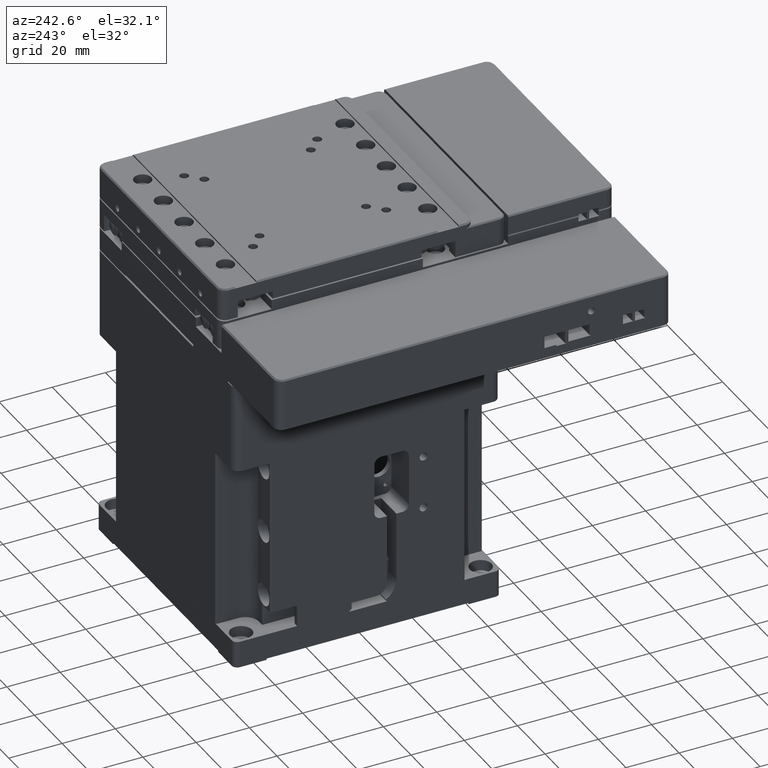
[diagram: clean part render]
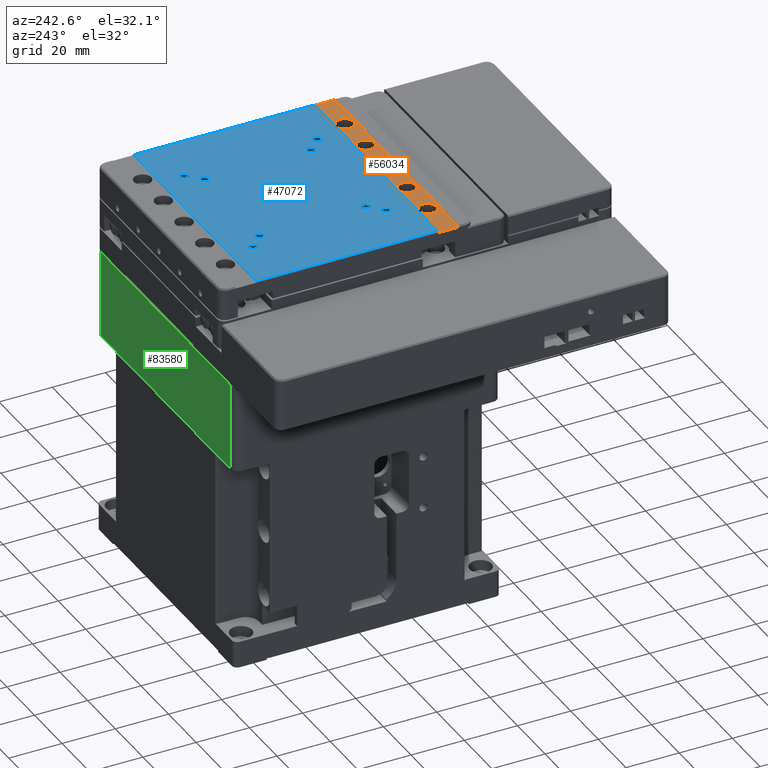
[diagram: same view with three faces highlighted in distinct colors, each labeled with its STEP entity id]
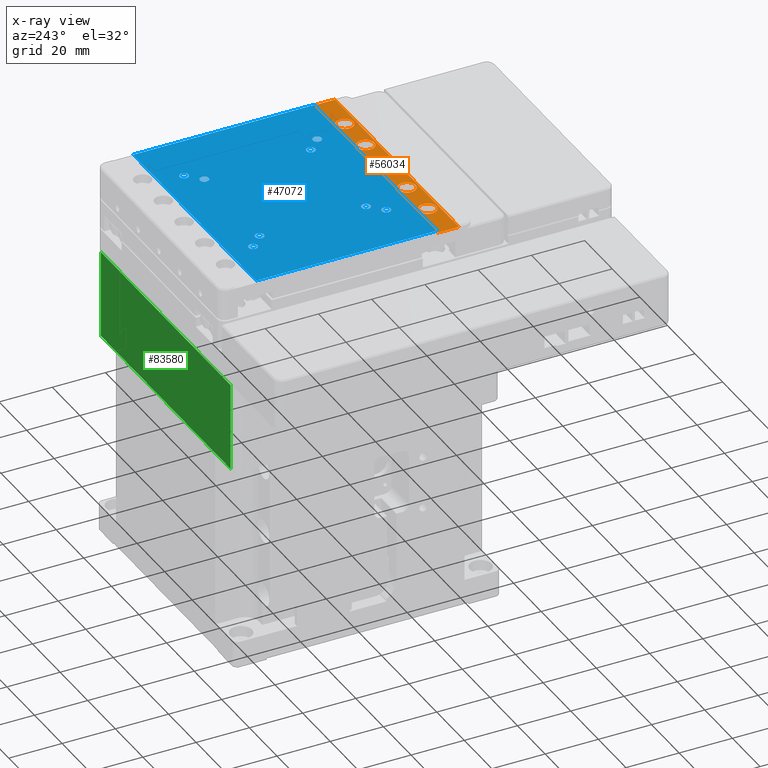
[diagram: x-ray of the same camera — body ghosted, the three highlighted faces saturated]
A machine part, auxiliary view with three faces highlighted in distinct colors.
The next image is the same camera in x-ray (body ghosted, the three faces saturated) — at least one of them is partly hidden behind the body in this view.
Their STEP definitions:

[orange] entity #56034 — the highlighted planar face has unit normal (0, 0, -1).
#1858 = CARTESIAN_POINT ( 'NONE',  ( 34.99999999999986500, -35.50000000000102318, 132.5000000000000000 ) ) ;
#2643 = ORIENTED_EDGE ( 'NONE', *, *, #15780, .F. ) ;
#6054 = DIRECTION ( 'NONE',  ( -1.665334536937734811E-16, -1.000000000000000000, -0.000000000000000000 ) ) ;
#6766 = CARTESIAN_POINT ( 'NONE',  ( -25.00000000000013145, -38.75000000000101608, 132.5000000000000000 ) ) ;
#7439 = EDGE_LOOP ( 'NONE', ( #2643 ) ) ;
#8883 = DIRECTION ( 'NONE',  ( 0.000000000000000000, 0.000000000000000000, 1.000000000000000000 ) ) ;
#9236 = DIRECTION ( 'NONE',  ( -1.000000000000000000, 1.665334536937734811E-16, 0.000000000000000000 ) ) ;
#10982 = EDGE_CURVE ( 'NONE', #37245, #37245, #47901, .T. ) ;
#11151 = EDGE_LOOP ( 'NONE', ( #74323 ) ) ;
#11542 = DIRECTION ( 'NONE',  ( 0.000000000000000000, -1.000000000000000000, 0.000000000000000000 ) ) ;
#12191 = ORIENTED_EDGE ( 'NONE', *, *, #41349, .F. ) ;
#12599 = VECTOR ( 'NONE', #19392, 1000.000000000000000 ) ;
#12980 = AXIS2_PLACEMENT_3D ( 'NONE', #61013, #52544, #16803 ) ;
#14529 = AXIS2_PLACEMENT_3D ( 'NONE', #57972, #79612, #22226 ) ;
#15780 = EDGE_CURVE ( 'NONE', #91766, #91766, #52053, .T. ) ;
#16452 = CARTESIAN_POINT ( 'NONE',  ( 34.99999999999986500, -38.75000000000102318, 132.5000000000000000 ) ) ;
#16750 = CARTESIAN_POINT ( 'NONE',  ( -55.00000000000013500, -31.50000000000100542, 132.5000000000000000 ) ) ;
#16803 = DIRECTION ( 'NONE',  ( -2.668805347656624213E-16, -1.000000000000000000, 0.000000000000000000 ) ) ;
#17552 = CIRCLE ( 'NONE', #64065, 3.250000000000002665 ) ;
#18461 = DIRECTION ( 'NONE',  ( 0.000000000000000000, -1.000000000000000000, 0.000000000000000000 ) ) ;
#19392 = DIRECTION ( 'NONE',  ( -1.000000000000000000, 1.665334536937734811E-16, -0.000000000000000000 ) ) ;
#19734 = CARTESIAN_POINT ( 'NONE',  ( -10.00000000000012790, -35.50000000000101608, 132.5000000000000000 ) ) ;
#22226 = DIRECTION ( 'NONE',  ( 1.665334536937734811E-16, 1.000000000000000000, 0.000000000000000000 ) ) ;
#23604 = FACE_BOUND ( 'NONE', #51692, .T. ) ;
#23847 = AXIS2_PLACEMENT_3D ( 'NONE', #82906, #52004, #18461 ) ;
#27277 = EDGE_CURVE ( 'NONE', #69181, #88121, #81194, .T. ) ;
#28460 = CIRCLE ( 'NONE', #91598, 3.250000000000002665 ) ;
#28651 = DIRECTION ( 'NONE',  ( 0.000000000000000000, 0.000000000000000000, 1.000000000000000000 ) ) ;
#30220 = FACE_BOUND ( 'NONE', #7439, .T. ) ;
#32977 = ORIENTED_EDGE ( 'NONE', *, *, #90815, .F. ) ;
#33040 = AXIS2_PLACEMENT_3D ( 'NONE', #1858, #8883, #80854 ) ;
#33061 = CARTESIAN_POINT ( 'NONE',  ( -55.00000000000013500, -39.50000000000103739, 132.5000000000000000 ) ) ;
#34102 = VERTEX_POINT ( 'NONE', #73872 ) ;
#36387 = VERTEX_POINT ( 'NONE', #6766 ) ;
#37245 = VERTEX_POINT ( 'NONE', #88049 ) ;
#37252 = FACE_BOUND ( 'NONE', #58352, .T. ) ;
#38652 = FACE_OUTER_BOUND ( 'NONE', #86114, .T. ) ;
#39205 = CARTESIAN_POINT ( 'NONE',  ( -40.00000000000013500, -31.50000000000100542, 132.5000000000000000 ) ) ;
#41349 = EDGE_CURVE ( 'NONE', #53129, #53129, #60022, .T. ) ;
#41791 = CARTESIAN_POINT ( 'NONE',  ( 49.99999999999986500, -31.50000000000101963, 132.5000000000000000 ) ) ;
#46673 = ORIENTED_EDGE ( 'NONE', *, *, #76871, .F. ) ;
#47901 = CIRCLE ( 'NONE', #23847, 3.250000000000002665 ) ;
#49408 = CARTESIAN_POINT ( 'NONE',  ( 4.999999999999870326, -38.75000000000102318, 132.5000000000000000 ) ) ;
#51692 = EDGE_LOOP ( 'NONE', ( #12191 ) ) ;
#52004 = DIRECTION ( 'NONE',  ( 0.000000000000000000, 0.000000000000000000, 1.000000000000000000 ) ) ;
#52053 = CIRCLE ( 'NONE', #12980, 3.250000000000002665 ) ;
#52544 = DIRECTION ( 'NONE',  ( 0.000000000000000000, 0.000000000000000000, 1.000000000000000000 ) ) ;
#52783 = VECTOR ( 'NONE', #9236, 1000.000000000000000 ) ;
#53129 = VERTEX_POINT ( 'NONE', #16452 ) ;
#53882 = VECTOR ( 'NONE', #6054, 1000.000000000000000 ) ;
#54835 = CARTESIAN_POINT ( 'NONE',  ( -25.00000000000013145, -35.50000000000100897, 132.5000000000000000 ) ) ;
#56034 = ADVANCED_FACE ( 'NONE', ( #38652, #23604, #37252, #30220, #87123, #67326 ), #58428, .F. ) ;
#57764 = EDGE_CURVE ( 'NONE', #69181, #34102, #85532, .T. ) ;
#57859 = CARTESIAN_POINT ( 'NONE',  ( -40.00000000000013500, -31.50000000000101252, 132.5000000000000000 ) ) ;
#57972 = CARTESIAN_POINT ( 'NONE',  ( -55.00000000000013500, -31.50000000000100542, 132.5000000000000000 ) ) ;
#58352 = EDGE_LOOP ( 'NONE', ( #92487 ) ) ;
#58428 = PLANE ( 'NONE',  #14529 ) ;
#59907 = DIRECTION ( 'NONE',  ( 1.665334536937734811E-16, 1.000000000000000000, 0.000000000000000000 ) ) ;
#60022 = CIRCLE ( 'NONE', #33040, 3.250000000000002665 ) ;
#61013 = CARTESIAN_POINT ( 'NONE',  ( 4.999999999999871214, -35.50000000000101608, 132.5000000000000000 ) ) ;
#63459 = DIRECTION ( 'NONE',  ( 0.000000000000000000, -1.000000000000000000, 0.000000000000000000 ) ) ;
#64065 = AXIS2_PLACEMENT_3D ( 'NONE', #54835, #83053, #11542 ) ;
#67326 = FACE_BOUND ( 'NONE', #73690, .T. ) ;
#68578 = EDGE_CURVE ( 'NONE', #78024, #78024, #28460, .T. ) ;
#69181 = VERTEX_POINT ( 'NONE', #73659 ) ;
#73659 = CARTESIAN_POINT ( 'NONE',  ( 49.99999999999986500, -31.50000000000103384, 132.5000000000000000 ) ) ;
#73690 = EDGE_LOOP ( 'NONE', ( #32977 ) ) ;
#73872 = CARTESIAN_POINT ( 'NONE',  ( 49.99999999920125049, -39.50000000000105160, 132.5000000008983250 ) ) ;
#74323 = ORIENTED_EDGE ( 'NONE', *, *, #68578, .F. ) ;
#74528 = VERTEX_POINT ( 'NONE', #85765 ) ;
#76871 = EDGE_CURVE ( 'NONE', #34102, #74528, #90931, .T. ) ;
#78024 = VERTEX_POINT ( 'NONE', #85097 ) ;
#79587 = ORIENTED_EDGE ( 'NONE', *, *, #57764, .F. ) ;
#79612 = DIRECTION ( 'NONE',  ( 0.000000000000000000, 0.000000000000000000, -1.000000000000000000 ) ) ;
#80472 = EDGE_CURVE ( 'NONE', #74528, #88121, #89081, .T. ) ;
#80854 = DIRECTION ( 'NONE',  ( 0.000000000000000000, -1.000000000000000000, 0.000000000000000000 ) ) ;
#81194 = LINE ( 'NONE', #16750, #52783 ) ;
#82906 = CARTESIAN_POINT ( 'NONE',  ( 19.99999999999987210, -35.50000000000101608, 132.5000000000000000 ) ) ;
#83053 = DIRECTION ( 'NONE',  ( 0.000000000000000000, 0.000000000000000000, 1.000000000000000000 ) ) ;
#84983 = ORIENTED_EDGE ( 'NONE', *, *, #80472, .F. ) ;
#85097 = CARTESIAN_POINT ( 'NONE',  ( -10.00000000000012790, -38.75000000000102318, 132.5000000000000000 ) ) ;
#85532 = LINE ( 'NONE', #41791, #53882 ) ;
#85765 = CARTESIAN_POINT ( 'NONE',  ( -40.00000000000013500, -39.50000000000104450, 132.5000000000000000 ) ) ;
#86114 = EDGE_LOOP ( 'NONE', ( #79587, #87418, #84983, #46673 ) ) ;
#87123 = FACE_BOUND ( 'NONE', #11151, .T. ) ;
#87418 = ORIENTED_EDGE ( 'NONE', *, *, #27277, .T. ) ;
#88049 = CARTESIAN_POINT ( 'NONE',  ( 19.99999999999987210, -38.75000000000102318, 132.5000000000000000 ) ) ;
#88121 = VERTEX_POINT ( 'NONE', #57859 ) ;
#89081 = LINE ( 'NONE', #39205, #93006 ) ;
#90815 = EDGE_CURVE ( 'NONE', #36387, #36387, #17552, .T. ) ;
#90931 = LINE ( 'NONE', #33061, #12599 ) ;
#91598 = AXIS2_PLACEMENT_3D ( 'NONE', #19734, #28651, #63459 ) ;
#91766 = VERTEX_POINT ( 'NONE', #49408 ) ;
#92487 = ORIENTED_EDGE ( 'NONE', *, *, #10982, .F. ) ;
#93006 = VECTOR ( 'NONE', #59907, 1000.000000000000000 ) ;

[blue] entity #47072 — the highlighted planar face has unit normal (0, 0, 1).
#38 = ORIENTED_EDGE ( 'NONE', *, *, #34598, .T. ) ;
#198 = ORIENTED_EDGE ( 'NONE', *, *, #19198, .T. ) ;
#773 = CARTESIAN_POINT ( 'NONE',  ( 29.99999999999988276, 25.84999999999898890, 133.0000000000000000 ) ) ;
#1189 = VERTEX_POINT ( 'NONE', #70933 ) ;
#1478 = AXIS2_PLACEMENT_3D ( 'NONE', #16462, #30142, #45159 ) ;
#1642 = EDGE_LOOP ( 'NONE', ( #65836 ) ) ;
#2622 = EDGE_LOOP ( 'NONE', ( #38 ) ) ;
#3110 = DIRECTION ( 'NONE',  ( -0.000000000000000000, -0.000000000000000000, -1.000000000000000000 ) ) ;
#3912 = EDGE_CURVE ( 'NONE', #37011, #18917, #64134, .T. ) ;
#5173 = EDGE_CURVE ( 'NONE', #1189, #46909, #59196, .T. ) ;
#5958 = CARTESIAN_POINT ( 'NONE',  ( 24.99999999999987921, 22.49999999999898037, 133.0000000000000000 ) ) ;
#6384 = CIRCLE ( 'NONE', #39441, 1.649999999999995248 ) ;
#6929 = EDGE_LOOP ( 'NONE', ( #45836 ) ) ;
#8848 = AXIS2_PLACEMENT_3D ( 'NONE', #46971, #69036, #90240 ) ;
#8974 = CIRCLE ( 'NONE', #1478, 1.649999999999995248 ) ;
#10660 = CARTESIAN_POINT ( 'NONE',  ( 24.99999999999987210, -19.15000000000102176, 133.0000000000000000 ) ) ;
#11994 = CARTESIAN_POINT ( 'NONE',  ( 49.49999999999990763, 49.99999999999897682, 133.0000000000000000 ) ) ;
#12792 = DIRECTION ( 'NONE',  ( -0.000000000000000000, -0.000000000000000000, -1.000000000000000000 ) ) ;
#14252 = CARTESIAN_POINT ( 'NONE',  ( 24.99999999999987210, -17.50000000000101963, 133.0000000000000000 ) ) ;
#15906 = EDGE_CURVE ( 'NONE', #18917, #1189, #57661, .T. ) ;
#16207 = ORIENTED_EDGE ( 'NONE', *, *, #3912, .T. ) ;
#16462 = CARTESIAN_POINT ( 'NONE',  ( 29.99999999999988276, 27.49999999999898392, 133.0000000000000000 ) ) ;
#16774 = FACE_BOUND ( 'NONE', #88339, .T. ) ;
#18678 = ORIENTED_EDGE ( 'NONE', *, *, #23963, .T. ) ;
#18917 = VERTEX_POINT ( 'NONE', #54469 ) ;
#19198 = EDGE_CURVE ( 'NONE', #50801, #50801, #72034, .T. ) ;
#19566 = CARTESIAN_POINT ( 'NONE',  ( -20.00000000000011724, 25.84999999999899600, 133.0000000000000000 ) ) ;
#19958 = DIRECTION ( 'NONE',  ( -1.000000000000000000, 1.665334536937734811E-16, -0.000000000000000000 ) ) ;
#20840 = CARTESIAN_POINT ( 'NONE',  ( 49.49999999999989342, 36.49999999999899813, 133.0000000000000000 ) ) ;
#21590 = DIRECTION ( 'NONE',  ( 1.000000000000000000, -1.665334536937734811E-16, 0.000000000000000000 ) ) ;
#21708 = DIRECTION ( 'NONE',  ( 0.000000000000000000, -1.000000000000000000, 0.000000000000000000 ) ) ;
#21713 = AXIS2_PLACEMENT_3D ( 'NONE', #65039, #81015, #58931 ) ;
#22000 = FACE_BOUND ( 'NONE', #60863, .T. ) ;
#22820 = EDGE_LOOP ( 'NONE', ( #27668 ) ) ;
#22921 = FACE_BOUND ( 'NONE', #71441, .T. ) ;
#23827 = FACE_BOUND ( 'NONE', #2622, .T. ) ;
#23963 = EDGE_CURVE ( 'NONE', #37490, #37490, #24669, .T. ) ;
#24113 = EDGE_CURVE ( 'NONE', #87376, #87376, #66748, .T. ) ;
#24669 = CIRCLE ( 'NONE', #77243, 1.650000000000002132 ) ;
#25528 = AXIS2_PLACEMENT_3D ( 'NONE', #39301, #3110, #40220 ) ;
#26735 = EDGE_CURVE ( 'NONE', #68955, #68955, #6384, .T. ) ;
#27021 = CARTESIAN_POINT ( 'NONE',  ( 49.99999999999987921, 36.49999999999898392, 133.0000000000000000 ) ) ;
#27668 = ORIENTED_EDGE ( 'NONE', *, *, #26735, .T. ) ;
#29920 = VERTEX_POINT ( 'NONE', #773 ) ;
#29965 = ORIENTED_EDGE ( 'NONE', *, *, #81414, .T. ) ;
#30142 = DIRECTION ( 'NONE',  ( -0.000000000000000000, -0.000000000000000000, -1.000000000000000000 ) ) ;
#30205 = EDGE_LOOP ( 'NONE', ( #32785, #62306, #60760, #16207 ) ) ;
#30450 = DIRECTION ( 'NONE',  ( -1.665334536937734811E-16, -1.000000000000000000, 0.000000000000000000 ) ) ;
#32531 = VECTOR ( 'NONE', #79767, 1000.000000000000000 ) ;
#32785 = ORIENTED_EDGE ( 'NONE', *, *, #15906, .T. ) ;
#34598 = EDGE_CURVE ( 'NONE', #85188, #85188, #83181, .T. ) ;
#34657 = DIRECTION ( 'NONE',  ( -0.000000000000000000, -0.000000000000000000, -1.000000000000000000 ) ) ;
#36480 = VERTEX_POINT ( 'NONE', #92949 ) ;
#37011 = VERTEX_POINT ( 'NONE', #20840 ) ;
#37490 = VERTEX_POINT ( 'NONE', #10660 ) ;
#37953 = FACE_BOUND ( 'NONE', #6929, .T. ) ;
#39301 = CARTESIAN_POINT ( 'NONE',  ( -15.00000000000012790, -17.50000000000101252, 133.0000000000000000 ) ) ;
#39441 = AXIS2_PLACEMENT_3D ( 'NONE', #44384, #73090, #74018 ) ;
#40220 = DIRECTION ( 'NONE',  ( 0.000000000000000000, -1.000000000000000000, 0.000000000000000000 ) ) ;
#42473 = DIRECTION ( 'NONE',  ( 0.000000000000000000, -1.000000000000000000, 0.000000000000000000 ) ) ;
#43194 = CIRCLE ( 'NONE', #67242, 1.649999999999995248 ) ;
#44072 = FACE_OUTER_BOUND ( 'NONE', #30205, .T. ) ;
#44384 = CARTESIAN_POINT ( 'NONE',  ( -20.00000000000011724, 27.49999999999899103, 133.0000000000000000 ) ) ;
#45159 = DIRECTION ( 'NONE',  ( 0.000000000000000000, -1.000000000000000000, 0.000000000000000000 ) ) ;
#45836 = ORIENTED_EDGE ( 'NONE', *, *, #24113, .T. ) ;
#46909 = VERTEX_POINT ( 'NONE', #85966 ) ;
#46971 = CARTESIAN_POINT ( 'NONE',  ( -15.00000000000012079, 22.49999999999898748, 133.0000000000000000 ) ) ;
#47072 = ADVANCED_FACE ( 'NONE', ( #44072, #16774, #59135, #58662, #23827, #22000, #37953, #22921, #72782 ), #58200, .T. ) ;
#48227 = LINE ( 'NONE', #11994, #79571 ) ;
#50689 = CARTESIAN_POINT ( 'NONE',  ( 49.99999999999987921, 49.99999999999897682, 133.0000000000000000 ) ) ;
#50801 = VERTEX_POINT ( 'NONE', #88399 ) ;
#51071 = CARTESIAN_POINT ( 'NONE',  ( -39.50000000000012079, 49.99999999999899103, 133.0000000000000000 ) ) ;
#51895 = VERTEX_POINT ( 'NONE', #52337 ) ;
#52337 = CARTESIAN_POINT ( 'NONE',  ( -15.00000000000012079, 20.84999999999898890, 133.0000000000000000 ) ) ;
#54469 = CARTESIAN_POINT ( 'NONE',  ( -39.50000000000012079, 36.49999999999899813, 133.0000000000000000 ) ) ;
#54937 = DIRECTION ( 'NONE',  ( 0.000000000000000000, -1.000000000000000000, 0.000000000000000000 ) ) ;
#55093 = EDGE_CURVE ( 'NONE', #36480, #36480, #43194, .T. ) ;
#57661 = LINE ( 'NONE', #51071, #32531 ) ;
#58200 = PLANE ( 'NONE',  #75741 ) ;
#58662 = FACE_BOUND ( 'NONE', #65695, .T. ) ;
#58931 = DIRECTION ( 'NONE',  ( 0.000000000000000000, -1.000000000000000000, 0.000000000000000000 ) ) ;
#59135 = FACE_BOUND ( 'NONE', #1642, .T. ) ;
#59148 = CARTESIAN_POINT ( 'NONE',  ( 29.99999999999987566, -24.15000000000101466, 133.0000000000000000 ) ) ;
#59196 = LINE ( 'NONE', #72852, #69870 ) ;
#60760 = ORIENTED_EDGE ( 'NONE', *, *, #79328, .T. ) ;
#60863 = EDGE_LOOP ( 'NONE', ( #29965 ) ) ;
#62306 = ORIENTED_EDGE ( 'NONE', *, *, #5173, .T. ) ;
#62330 = DIRECTION ( 'NONE',  ( 1.665334536937734811E-16, 1.000000000000000000, -0.000000000000000000 ) ) ;
#64134 = LINE ( 'NONE', #27021, #78509 ) ;
#65039 = CARTESIAN_POINT ( 'NONE',  ( 29.99999999999987566, -22.50000000000101963, 133.0000000000000000 ) ) ;
#65695 = EDGE_LOOP ( 'NONE', ( #18678 ) ) ;
#65836 = ORIENTED_EDGE ( 'NONE', *, *, #91614, .T. ) ;
#65910 = CIRCLE ( 'NONE', #8848, 1.649999999999998579 ) ;
#66748 = CIRCLE ( 'NONE', #21713, 1.649999999999995248 ) ;
#67242 = AXIS2_PLACEMENT_3D ( 'NONE', #86158, #12792, #21708 ) ;
#68955 = VERTEX_POINT ( 'NONE', #19566 ) ;
#69036 = DIRECTION ( 'NONE',  ( -0.000000000000000000, -0.000000000000000000, -1.000000000000000000 ) ) ;
#69870 = VECTOR ( 'NONE', #21590, 1000.000000000000000 ) ;
#70933 = CARTESIAN_POINT ( 'NONE',  ( -39.50000000000013500, -31.50000000000102673, 133.0000000000000000 ) ) ;
#71441 = EDGE_LOOP ( 'NONE', ( #73722 ) ) ;
#72034 = CIRCLE ( 'NONE', #25528, 1.650000000000002132 ) ;
#72782 = FACE_BOUND ( 'NONE', #22820, .T. ) ;
#72852 = CARTESIAN_POINT ( 'NONE',  ( 49.99999999999986500, -31.50000000000104095, 133.0000000000000000 ) ) ;
#73090 = DIRECTION ( 'NONE',  ( -0.000000000000000000, -0.000000000000000000, -1.000000000000000000 ) ) ;
#73722 = ORIENTED_EDGE ( 'NONE', *, *, #55093, .T. ) ;
#74018 = DIRECTION ( 'NONE',  ( 0.000000000000000000, -1.000000000000000000, 0.000000000000000000 ) ) ;
#75741 = AXIS2_PLACEMENT_3D ( 'NONE', #50689, #88283, #30450 ) ;
#77243 = AXIS2_PLACEMENT_3D ( 'NONE', #14252, #85297, #42473 ) ;
#78509 = VECTOR ( 'NONE', #19958, 1000.000000000000000 ) ;
#79328 = EDGE_CURVE ( 'NONE', #46909, #37011, #48227, .T. ) ;
#79571 = VECTOR ( 'NONE', #62330, 1000.000000000000000 ) ;
#79767 = DIRECTION ( 'NONE',  ( -1.665334536937734811E-16, -1.000000000000000000, 0.000000000000000000 ) ) ;
#81015 = DIRECTION ( 'NONE',  ( -0.000000000000000000, -0.000000000000000000, -1.000000000000000000 ) ) ;
#81414 = EDGE_CURVE ( 'NONE', #29920, #29920, #8974, .T. ) ;
#83181 = CIRCLE ( 'NONE', #87656, 1.649999999999998579 ) ;
#84261 = CARTESIAN_POINT ( 'NONE',  ( 24.99999999999987921, 20.84999999999898179, 133.0000000000000000 ) ) ;
#85188 = VERTEX_POINT ( 'NONE', #84261 ) ;
#85297 = DIRECTION ( 'NONE',  ( -0.000000000000000000, -0.000000000000000000, -1.000000000000000000 ) ) ;
#85966 = CARTESIAN_POINT ( 'NONE',  ( 49.49999999999987921, -31.50000000000104095, 133.0000000000000000 ) ) ;
#86158 = CARTESIAN_POINT ( 'NONE',  ( -20.00000000000012790, -22.50000000000101252, 133.0000000000000000 ) ) ;
#87376 = VERTEX_POINT ( 'NONE', #59148 ) ;
#87656 = AXIS2_PLACEMENT_3D ( 'NONE', #5958, #34657, #54937 ) ;
#88283 = DIRECTION ( 'NONE',  ( 0.000000000000000000, 0.000000000000000000, 1.000000000000000000 ) ) ;
#88339 = EDGE_LOOP ( 'NONE', ( #198 ) ) ;
#88399 = CARTESIAN_POINT ( 'NONE',  ( -15.00000000000012790, -19.15000000000101466, 133.0000000000000000 ) ) ;
#90240 = DIRECTION ( 'NONE',  ( 0.000000000000000000, -1.000000000000000000, 0.000000000000000000 ) ) ;
#91614 = EDGE_CURVE ( 'NONE', #51895, #51895, #65910, .T. ) ;
#92949 = CARTESIAN_POINT ( 'NONE',  ( -20.00000000000012790, -24.15000000000100755, 133.0000000000000000 ) ) ;

[green] entity #83580 — the highlighted planar face has unit normal (0, -1, 0).
#2037 = DIRECTION ( 'NONE',  ( 0.000000000000000000, 0.000000000000000000, -1.000000000000000000 ) ) ;
#3684 = EDGE_CURVE ( 'NONE', #11042, #5338, #87754, .T. ) ;
#4796 = DIRECTION ( 'NONE',  ( -0.000000000000000000, 0.000000000000000000, 1.000000000000000000 ) ) ;
#5338 = VERTEX_POINT ( 'NONE', #19618 ) ;
#7685 = EDGE_CURVE ( 'NONE', #5338, #24244, #21084, .T. ) ;
#10125 = CARTESIAN_POINT ( 'NONE',  ( -50.00000000000000000, 50.00000000000000000, 67.00000000000000000 ) ) ;
#10330 = EDGE_CURVE ( 'NONE', #24244, #79710, #52591, .T. ) ;
#11042 = VERTEX_POINT ( 'NONE', #33981 ) ;
#13125 = VECTOR ( 'NONE', #4796, 1000.000000000000000 ) ;
#14724 = CARTESIAN_POINT ( 'NONE',  ( -47.00000000000000000, 50.00000000000000000, 99.50000000000000000 ) ) ;
#18718 = ORIENTED_EDGE ( 'NONE', *, *, #53691, .F. ) ;
#19618 = CARTESIAN_POINT ( 'NONE',  ( 47.00000000000000000, 50.00000000000000000, 67.00000000000000000 ) ) ;
#21084 = LINE ( 'NONE', #89481, #13125 ) ;
#24244 = VERTEX_POINT ( 'NONE', #87155 ) ;
#28294 = VECTOR ( 'NONE', #73316, 1000.000000000000000 ) ;
#33176 = DIRECTION ( 'NONE',  ( 0.000000000000000000, -1.000000000000000000, 0.000000000000000000 ) ) ;
#33372 = AXIS2_PLACEMENT_3D ( 'NONE', #83503, #33176, #61851 ) ;
#33981 = CARTESIAN_POINT ( 'NONE',  ( -47.00000000000000000, 50.00000000000000000, 67.00000000000000000 ) ) ;
#40215 = FACE_OUTER_BOUND ( 'NONE', #46150, .T. ) ;
#43221 = CARTESIAN_POINT ( 'NONE',  ( -47.00000000000000000, 50.00000000000000000, 100.0000000000000000 ) ) ;
#46150 = EDGE_LOOP ( 'NONE', ( #72797, #75283, #18718, #70043 ) ) ;
#48439 = VECTOR ( 'NONE', #51997, 1000.000000000000000 ) ;
#51997 = DIRECTION ( 'NONE',  ( 1.000000000000000000, 0.000000000000000000, 0.000000000000000000 ) ) ;
#52591 = LINE ( 'NONE', #59211, #28294 ) ;
#53691 = EDGE_CURVE ( 'NONE', #79710, #11042, #73509, .T. ) ;
#59211 = CARTESIAN_POINT ( 'NONE',  ( 0.000000000000000000, 50.00000000000000000, 100.0000000000000000 ) ) ;
#61851 = DIRECTION ( 'NONE',  ( 0.000000000000000000, -0.000000000000000000, -1.000000000000000000 ) ) ;
#68895 = PLANE ( 'NONE',  #33372 ) ;
#70043 = ORIENTED_EDGE ( 'NONE', *, *, #10330, .F. ) ;
#72797 = ORIENTED_EDGE ( 'NONE', *, *, #7685, .F. ) ;
#73316 = DIRECTION ( 'NONE',  ( -1.000000000000000000, -0.000000000000000000, 0.000000000000000000 ) ) ;
#73509 = LINE ( 'NONE', #14724, #79139 ) ;
#75283 = ORIENTED_EDGE ( 'NONE', *, *, #3684, .F. ) ;
#79139 = VECTOR ( 'NONE', #2037, 1000.000000000000000 ) ;
#79710 = VERTEX_POINT ( 'NONE', #43221 ) ;
#83503 = CARTESIAN_POINT ( 'NONE',  ( -50.00000000000000000, 50.00000000000000000, 99.50000000000000000 ) ) ;
#83580 = ADVANCED_FACE ( 'NONE', ( #40215 ), #68895, .F. ) ;
#87155 = CARTESIAN_POINT ( 'NONE',  ( 47.00000000000000000, 50.00000000000000000, 100.0000000000000000 ) ) ;
#87754 = LINE ( 'NONE', #10125, #48439 ) ;
#89481 = CARTESIAN_POINT ( 'NONE',  ( 47.00000000000000000, 50.00000000000000000, 99.50000000000000000 ) ) ;